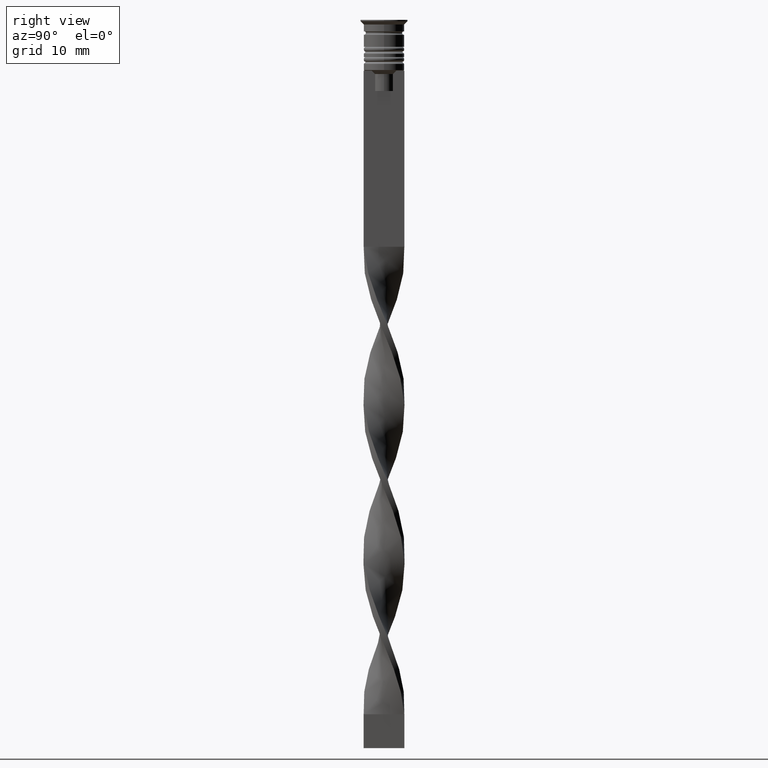
[diagram: clean part render]
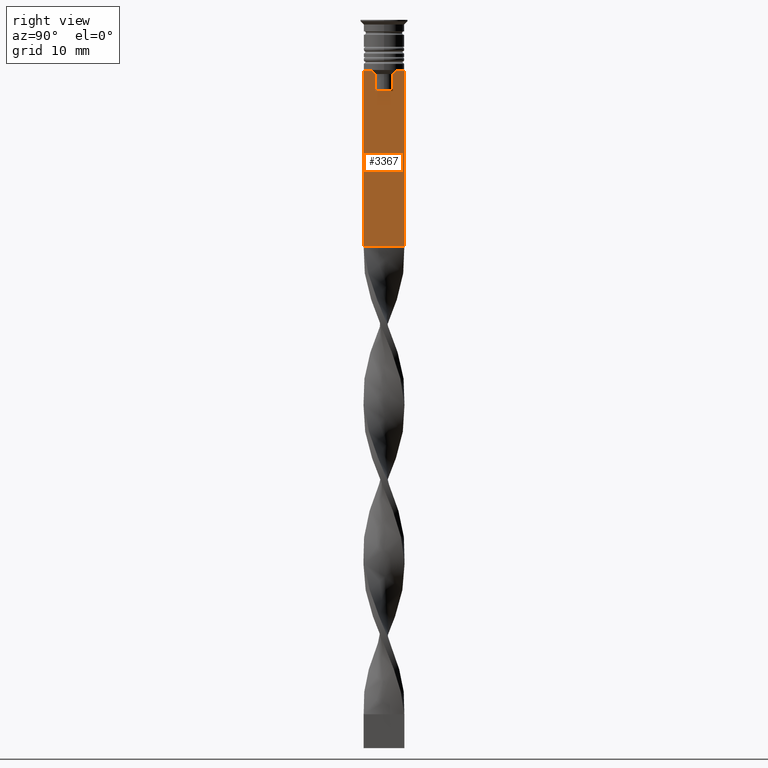
[diagram: same view with one face highlighted and labeled with its STEP entity id]
A machine part, right view. The second image highlights one B-rep face of the part: STEP entity #3367.
In plain terms, the highlighted planar face has unit normal (-1, 0, 0).
Its self-contained STEP definition (entity closure, byte-faithful):
#16 = CARTESIAN_POINT ( 'NONE',  ( 0.4999999999999998890, 3.000000000000000000, -1.417237469701779329 ) ) ;
#139 = EDGE_CURVE ( 'NONE', #1853, #1654, #2963, .T. ) ;
#145 = CARTESIAN_POINT ( 'NONE',  ( 0.4999999999999998890, 1.833030277982335754, -7.500000000000000000 ) ) ;
#158 = CARTESIAN_POINT ( 'NONE',  ( 0.4999999999999998890, -3.000000000000000000, -7.500000000000000000 ) ) ;
#178 = DIRECTION ( 'NONE',  ( 0.000000000000000000, -1.000000000000000000, 0.000000000000000000 ) ) ;
#235 = LINE ( 'NONE', #1309, #1007 ) ;
#258 = LINE ( 'NONE', #3168, #2068 ) ;
#292 = DIRECTION ( 'NONE',  ( 0.000000000000000000, 0.000000000000000000, -1.000000000000000000 ) ) ;
#296 = VERTEX_POINT ( 'NONE', #906 ) ;
#297 = ORIENTED_EDGE ( 'NONE', *, *, #1561, .T. ) ;
#336 = LINE ( 'NONE', #3261, #3343 ) ;
#344 = VECTOR ( 'NONE', #3414, 1000.000000000000000 ) ;
#469 = EDGE_CURVE ( 'NONE', #1617, #3353, #2615, .T. ) ;
#472 = CARTESIAN_POINT ( 'NONE',  ( 0.4999999999999998890, -3.000000000000000000, -1.417237469701779329 ) ) ;
#495 = VECTOR ( 'NONE', #1270, 1000.000000000000000 ) ;
#552 = EDGE_CURVE ( 'NONE', #3250, #1617, #1814, .T. ) ;
#632 = ORIENTED_EDGE ( 'NONE', *, *, #3195, .T. ) ;
#722 = CARTESIAN_POINT ( 'NONE',  ( 0.4999999999999998890, -3.000000000000000000, -7.500000000000000000 ) ) ;
#754 = CARTESIAN_POINT ( 'NONE',  ( 0.4999999999999998890, -3.000000000000000000, -7.500000000000000000 ) ) ;
#763 = CARTESIAN_POINT ( 'NONE',  ( 0.4999999999999998890, -3.000000000000000000, -33.50000000000000000 ) ) ;
#788 = AXIS2_PLACEMENT_3D ( 'NONE', #472, #3169, #2095 ) ;
#906 = CARTESIAN_POINT ( 'NONE',  ( 0.4999999999999998890, 1.307669683062199439, -8.000000000000000000 ) ) ;
#913 = CARTESIAN_POINT ( 'NONE',  ( 0.4999999999999998890, 3.000000000000000000, -33.50000000000000000 ) ) ;
#931 = CARTESIAN_POINT ( 'NONE',  ( 0.4999999999999998890, -1.307669683062199439, -10.49999999999999822 ) ) ;
#1007 = VECTOR ( 'NONE', #2377, 1000.000000000000000 ) ;
#1102 = CARTESIAN_POINT ( 'NONE',  ( 0.4999999999999998890, 3.000000000000000000, -7.500000000000000000 ) ) ;
#1106 = CARTESIAN_POINT ( 'NONE',  ( 0.4999999999999998890, -1.484307477388859153, -7.835011508197190722 ) ) ;
#1130 = ORIENTED_EDGE ( 'NONE', *, *, #3137, .T. ) ;
#1158 = CARTESIAN_POINT ( 'NONE',  ( 0.4999999999999998890, -1.833030277982335754, -7.500000000000000000 ) ) ;
#1192 = EDGE_LOOP ( 'NONE', ( #1607, #632, #1598, #297, #1259, #2189, #1130, #3139, #2234, #3267, #2494, #2165 ) ) ;
#1211 = CARTESIAN_POINT ( 'NONE',  ( 0.4999999999999998890, 1.659046061654642967, -7.667851756010362507 ) ) ;
#1259 = ORIENTED_EDGE ( 'NONE', *, *, #2459, .T. ) ;
#1270 = DIRECTION ( 'NONE',  ( 0.000000000000000000, -1.000000000000000000, 0.000000000000000000 ) ) ;
#1279 = FACE_OUTER_BOUND ( 'NONE', #1192, .T. ) ;
#1309 = CARTESIAN_POINT ( 'NONE',  ( 0.4999999999999998890, -1.307669683062199439, 0.000000000000000000 ) ) ;
#1409 = VERTEX_POINT ( 'NONE', #931 ) ;
#1416 = VECTOR ( 'NONE', #3324, 1000.000000000000000 ) ;
#1479 = VERTEX_POINT ( 'NONE', #2330 ) ;
#1495 = CARTESIAN_POINT ( 'NONE',  ( 0.4999999999999998890, -2.856571371417139904, -7.500000000000000000 ) ) ;
#1518 = CARTESIAN_POINT ( 'NONE',  ( 0.4999999999999998890, 1.399999999999997691, -10.49999999999999822 ) ) ;
#1530 = VERTEX_POINT ( 'NONE', #1845 ) ;
#1544 = B_SPLINE_CURVE_WITH_KNOTS ( 'NONE', 3,
 ( #145, #1211, #3104, #2290 ),
 .UNSPECIFIED., .F., .F.,
 ( 4, 4 ),
 ( 0.003278537493109848298, 0.004003794023484941178 ),
 .UNSPECIFIED. ) ;
#1561 = EDGE_CURVE ( 'NONE', #2239, #1409, #2903, .T. ) ;
#1598 = ORIENTED_EDGE ( 'NONE', *, *, #2308, .T. ) ;
#1607 = ORIENTED_EDGE ( 'NONE', *, *, #3096, .T. ) ;
#1617 = VERTEX_POINT ( 'NONE', #722 ) ;
#1654 = VERTEX_POINT ( 'NONE', #913 ) ;
#1711 = B_SPLINE_CURVE_WITH_KNOTS ( 'NONE', 3,
 ( #2753, #1106, #3249, #2474 ),
 .UNSPECIFIED., .F., .F.,
 ( 4, 4 ),
 ( 0.007225659348748082224, 0.007950554640278054835 ),
 .UNSPECIFIED. ) ;
#1754 = LINE ( 'NONE', #158, #2185 ) ;
#1814 = LINE ( 'NONE', #754, #495 ) ;
#1845 = CARTESIAN_POINT ( 'NONE',  ( 0.4999999999999998890, 2.856571371417139904, -7.500000000000000000 ) ) ;
#1853 = VERTEX_POINT ( 'NONE', #1102 ) ;
#2013 = VERTEX_POINT ( 'NONE', #1158 ) ;
#2059 = LINE ( 'NONE', #3138, #344 ) ;
#2065 = VECTOR ( 'NONE', #2858, 1000.000000000000000 ) ;
#2068 = VECTOR ( 'NONE', #2339, 1000.000000000000000 ) ;
#2077 = EDGE_CURVE ( 'NONE', #1853, #1530, #1754, .T. ) ;
#2095 = DIRECTION ( 'NONE',  ( 0.000000000000000000, 0.000000000000000000, 1.000000000000000000 ) ) ;
#2153 = CARTESIAN_POINT ( 'NONE',  ( 0.4999999999999998890, -1.307669683062199439, -8.000000000000000000 ) ) ;
#2165 = ORIENTED_EDGE ( 'NONE', *, *, #2077, .T. ) ;
#2185 = VECTOR ( 'NONE', #178, 1000.000000000000000 ) ;
#2189 = ORIENTED_EDGE ( 'NONE', *, *, #2738, .T. ) ;
#2234 = ORIENTED_EDGE ( 'NONE', *, *, #469, .T. ) ;
#2239 = VERTEX_POINT ( 'NONE', #2257 ) ;
#2257 = CARTESIAN_POINT ( 'NONE',  ( 0.4999999999999998890, 1.307669683062199439, -10.49999999999999822 ) ) ;
#2290 = CARTESIAN_POINT ( 'NONE',  ( 0.4999999999999998890, 1.307669683062199439, -8.000000000000000000 ) ) ;
#2308 = EDGE_CURVE ( 'NONE', #296, #2239, #258, .T. ) ;
#2325 = EDGE_CURVE ( 'NONE', #3353, #1654, #2059, .T. ) ;
#2330 = CARTESIAN_POINT ( 'NONE',  ( 0.4999999999999998890, 1.833030277982335754, -7.500000000000000000 ) ) ;
#2339 = DIRECTION ( 'NONE',  ( 0.000000000000000000, 0.000000000000000000, -1.000000000000000000 ) ) ;
#2377 = DIRECTION ( 'NONE',  ( -0.000000000000000000, -0.000000000000000000, 1.000000000000000000 ) ) ;
#2452 = VECTOR ( 'NONE', #3354, 1000.000000000000000 ) ;
#2459 = EDGE_CURVE ( 'NONE', #1409, #2548, #235, .T. ) ;
#2474 = CARTESIAN_POINT ( 'NONE',  ( 0.4999999999999998890, -1.833030277982335754, -7.500000000000000000 ) ) ;
#2494 = ORIENTED_EDGE ( 'NONE', *, *, #139, .F. ) ;
#2548 = VERTEX_POINT ( 'NONE', #2153 ) ;
#2560 = VECTOR ( 'NONE', #292, 1000.000000000000000 ) ;
#2615 = LINE ( 'NONE', #2875, #2452 ) ;
#2738 = EDGE_CURVE ( 'NONE', #2548, #2013, #1711, .T. ) ;
#2753 = CARTESIAN_POINT ( 'NONE',  ( 0.4999999999999998890, -1.307669683062199439, -8.000000000000000000 ) ) ;
#2780 = CARTESIAN_POINT ( 'NONE',  ( 0.4999999999999998890, -3.000000000000000000, -7.500000000000000000 ) ) ;
#2858 = DIRECTION ( 'NONE',  ( 0.000000000000000000, -1.000000000000000000, 0.000000000000000000 ) ) ;
#2875 = CARTESIAN_POINT ( 'NONE',  ( 0.4999999999999998890, -3.000000000000000000, -1.417237469701779329 ) ) ;
#2903 = LINE ( 'NONE', #1518, #2065 ) ;
#2927 = PLANE ( 'NONE',  #788 ) ;
#2963 = LINE ( 'NONE', #16, #2560 ) ;
#3041 = LINE ( 'NONE', #2780, #1416 ) ;
#3096 = EDGE_CURVE ( 'NONE', #1530, #1479, #336, .T. ) ;
#3104 = CARTESIAN_POINT ( 'NONE',  ( 0.4999999999999998890, 1.484355510416485835, -7.834966642958598015 ) ) ;
#3137 = EDGE_CURVE ( 'NONE', #2013, #3250, #3041, .T. ) ;
#3138 = CARTESIAN_POINT ( 'NONE',  ( 0.4999999999999998890, -3.000000000000000000, -33.50000000000000000 ) ) ;
#3139 = ORIENTED_EDGE ( 'NONE', *, *, #552, .T. ) ;
#3168 = CARTESIAN_POINT ( 'NONE',  ( 0.4999999999999998890, 1.307669683062199439, 0.000000000000000000 ) ) ;
#3169 = DIRECTION ( 'NONE',  ( -1.000000000000000000, 0.000000000000000000, 0.000000000000000000 ) ) ;
#3195 = EDGE_CURVE ( 'NONE', #1479, #296, #1544, .T. ) ;
#3249 = CARTESIAN_POINT ( 'NONE',  ( 0.4999999999999998890, -1.659011726860414093, -7.667884880598472286 ) ) ;
#3250 = VERTEX_POINT ( 'NONE', #1495 ) ;
#3261 = CARTESIAN_POINT ( 'NONE',  ( 0.4999999999999998890, -3.000000000000000000, -7.500000000000000000 ) ) ;
#3267 = ORIENTED_EDGE ( 'NONE', *, *, #2325, .T. ) ;
#3275 = DIRECTION ( 'NONE',  ( 0.000000000000000000, -1.000000000000000000, 0.000000000000000000 ) ) ;
#3324 = DIRECTION ( 'NONE',  ( 0.000000000000000000, -1.000000000000000000, 0.000000000000000000 ) ) ;
#3343 = VECTOR ( 'NONE', #3275, 1000.000000000000000 ) ;
#3353 = VERTEX_POINT ( 'NONE', #763 ) ;
#3354 = DIRECTION ( 'NONE',  ( 0.000000000000000000, 0.000000000000000000, -1.000000000000000000 ) ) ;
#3367 = ADVANCED_FACE ( 'NONE', ( #1279 ), #2927, .F. ) ;
#3414 = DIRECTION ( 'NONE',  ( 0.000000000000000000, 1.000000000000000000, 0.000000000000000000 ) ) ;